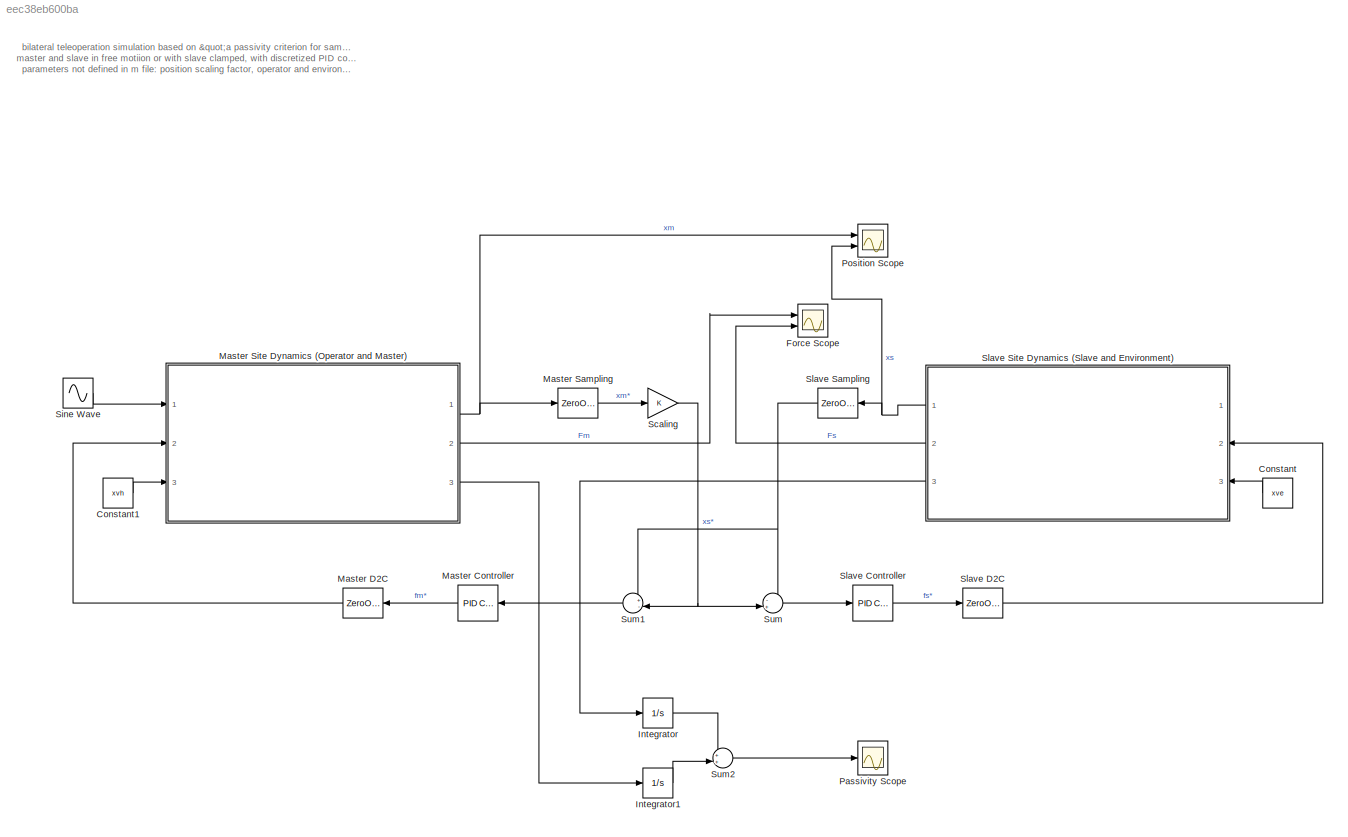
MODEL slx_eec38eb600ba
KIND model
CONFIG AbsTol = auto
CONFIG EnableMultiTasking = off
CONFIG FixedStep = 0.0001
CONFIG MaxStep = auto
CONFIG MinStep = auto
CONFIG RelTol = 1e-3
CONFIG SampleTimeConstraint = Unconstrained
CONFIG Solver = FixedStepAuto
CONFIG SolverName = FixedStepAuto
CONFIG StartTime = 0.0
CONFIG StopTime = 10
BLOCK [Constant] Constant
  Value = xve
BLOCK [Constant] Constant1
  Value = xvh
BLOCK [Scope] Force Scope
  NumInputPorts = 2
  Ports = [2]
  ScopeSpecificationString = Simulink.scopes.TimeScopeBlockCfg('CurrentConfiguration', extmgr.ConfigurationSet(extmgr.Configuration('Core','General UI',true),extmgr.Configuration('Core','Source UI',true),extmgr.Configuration('Sources','WiredSimulink',true,'DataLoggingVariableName','ScopeData1'),extmgr.Configuration('Visuals','Time Domain',true,'SerializedDisplays',{struct('MinYLimReal','-18466.92467','MaxYLimReal','20308.6128...<+1429ch>
BLOCK [Integrator] Integrator
  Ports = [1, 1]
BLOCK [Integrator] Integrator1
  Ports = [1, 1]
BLOCK [Reference] Master Controller  REF=simulink/Continuous/PID Controller
  Ports = [1, 1]
  SourceBlock = simulink/Continuous/PID Controller
  SourceProductBaseCode = SL
  SourceProductName = Simulink
  SourceType = PID 1dof
BLOCK [ZeroOrderHold] Master D2C
  SampleTime = -1
BLOCK [ZeroOrderHold] Master Sampling
  SampleTime = tsamp
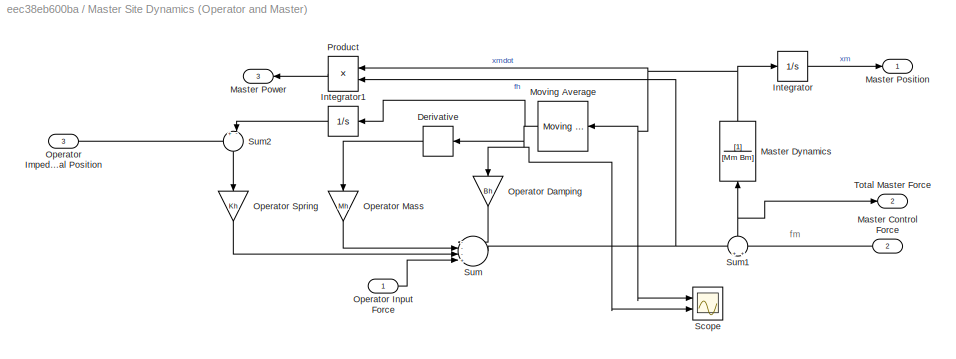
BLOCK [SubSystem] Master Site Dynamics (Operator and Master)
  Ports = [3, 3]
  RequestExecContextInheritance = off
  Variant = off
BLOCK [Derivative] Master Site Dynamics (Operator and Master)/Derivative
BLOCK [Integrator] Master Site Dynamics (Operator and Master)/Integrator
  Ports = [1, 1]
BLOCK [Integrator] Master Site Dynamics (Operator and Master)/Integrator1
  Ports = [1, 1]
BLOCK [Inport] Master Site Dynamics (Operator and Master)/Master Control Force
  IconDisplay = Port number
  Port = 2
BLOCK [TransferFcn] Master Site Dynamics (Operator and Master)/Master Dynamics
  Denominator = [Mm Bm]
BLOCK [Outport] Master Site Dynamics (Operator and Master)/Master Position
  IconDisplay = Port number
BLOCK [Outport] Master Site Dynamics (Operator and Master)/Master Power
  IconDisplay = Port number
  Port = 3
BLOCK [Reference] Master Site Dynamics (Operator and Master)/Moving Average  REF=dspstat3/Moving
Average
  Ports = [1, 1]
  SourceBlock = dspstat3/Moving\nAverage
  SourceProductBaseCode = DS
  SourceProductName = DSP System Toolbox
  SourceType = dsp.MovingAverage
BLOCK [Gain] Master Site Dynamics (Operator and Master)/Operator Damping
  Gain = Bh
  OutDataTypeStr = Inherit: Inherit via internal rule
  ParamDataTypeStr = Inherit: Inherit via internal rule
  SaturateOnIntegerOverflow = off
BLOCK [Inport] Master Site Dynamics (Operator and Master)/Operator Impedance Virtual Position
  IconDisplay = Port number
  Port = 3
BLOCK [Inport] Master Site Dynamics (Operator and Master)/Operator Input Force
  IconDisplay = Port number
BLOCK [Gain] Master Site Dynamics (Operator and Master)/Operator Mass
  Gain = Mh
  OutDataTypeStr = Inherit: Inherit via internal rule
  ParamDataTypeStr = Inherit: Inherit via internal rule
  SaturateOnIntegerOverflow = off
BLOCK [Gain] Master Site Dynamics (Operator and Master)/Operator Spring
  Gain = Kh
  OutDataTypeStr = Inherit: Inherit via internal rule
  ParamDataTypeStr = Inherit: Inherit via internal rule
  SaturateOnIntegerOverflow = off
BLOCK [Product] Master Site Dynamics (Operator and Master)/Product
  InputSameDT = off
  OutDataTypeStr = Inherit: Inherit via internal rule
  Ports = [2, 1]
  RndMeth = Floor
  SaturateOnIntegerOverflow = off
BLOCK [Scope] Master Site Dynamics (Operator and Master)/Scope
  NumInputPorts = 2
  Ports = [2]
  ScopeSpecificationString = Simulink.scopes.TimeScopeBlockCfg('CurrentConfiguration', extmgr.ConfigurationSet(extmgr.Configuration('Core','General UI',true),extmgr.Configuration('Core','Source UI',true),extmgr.Configuration('Sources','WiredSimulink',true,'DataLoggingVariableName','ScopeData1'),extmgr.Configuration('Visuals','Time Domain',true,'SerializedDisplays',{struct('MinYLimReal','-6.77541','MaxYLimReal','6.74983','YLab...<+1414ch>
BLOCK [Sum] Master Site Dynamics (Operator and Master)/Sum
  IconShape = round
  InputSameDT = off
  Inputs = ---+|
  OutDataTypeStr = Inherit: Inherit via internal rule
  Ports = [4, 1]
  SaturateOnIntegerOverflow = off
BLOCK [Sum] Master Site Dynamics (Operator and Master)/Sum1
  IconShape = round
  InputSameDT = off
  Inputs = +|+
  OutDataTypeStr = Inherit: Inherit via internal rule
  Ports = [2, 1]
  SaturateOnIntegerOverflow = off
BLOCK [Sum] Master Site Dynamics (Operator and Master)/Sum2
  IconShape = round
  InputSameDT = off
  Inputs = +-|
  OutDataTypeStr = Inherit: Inherit via internal rule
  Ports = [2, 1]
  SaturateOnIntegerOverflow = off
BLOCK [Outport] Master Site Dynamics (Operator and Master)/Total Master Force
  IconDisplay = Port number
  Port = 2
BLOCK [Scope] Passivity Scope
  NumInputPorts = 1
  Ports = [1]
  ScopeSpecificationString = Simulink.scopes.TimeScopeBlockCfg('CurrentConfiguration', extmgr.ConfigurationSet(extmgr.Configuration('Core','General UI',true),extmgr.Configuration('Core','Source UI',true),extmgr.Configuration('Sources','WiredSimulink',true,'DataLoggingVariableName','ScopeData4'),extmgr.Configuration('Visuals','Time Domain',true,'SerializedDisplays',{struct('MinYLimReal','-2.90635','MaxYLimReal','26.1578','YLab...<+1440ch>
BLOCK [Scope] Position Scope
  NumInputPorts = 2
  Ports = [2]
  ScopeSpecificationString = Simulink.scopes.TimeScopeBlockCfg('CurrentConfiguration', extmgr.ConfigurationSet(extmgr.Configuration('Core','General UI',true),extmgr.Configuration('Core','Source UI',true),extmgr.Configuration('Sources','WiredSimulink',true),extmgr.Configuration('Visuals','Time Domain',true,'SerializedDisplays',{struct('MinYLimReal','-2.74905','MaxYLimReal','11.15166','YLabelReal','','MinYLimMag','0.00000','Max...<+1410ch>
BLOCK [Gain] Scaling
  OutDataTypeStr = Inherit: Inherit via internal rule
  ParamDataTypeStr = Inherit: Inherit via internal rule
  SaturateOnIntegerOverflow = off
BLOCK [Sin] Sine Wave
  Frequency = 10
  Ports = [0, 1]
  SampleTime = 0
BLOCK [Reference] Slave Controller  REF=simulink/Continuous/PID Controller
  Ports = [1, 1]
  SourceBlock = simulink/Continuous/PID Controller
  SourceProductBaseCode = SL
  SourceProductName = Simulink
  SourceType = PID 1dof
BLOCK [ZeroOrderHold] Slave D2C
  SampleTime = -1
BLOCK [ZeroOrderHold] Slave Sampling
  SampleTime = tsamp
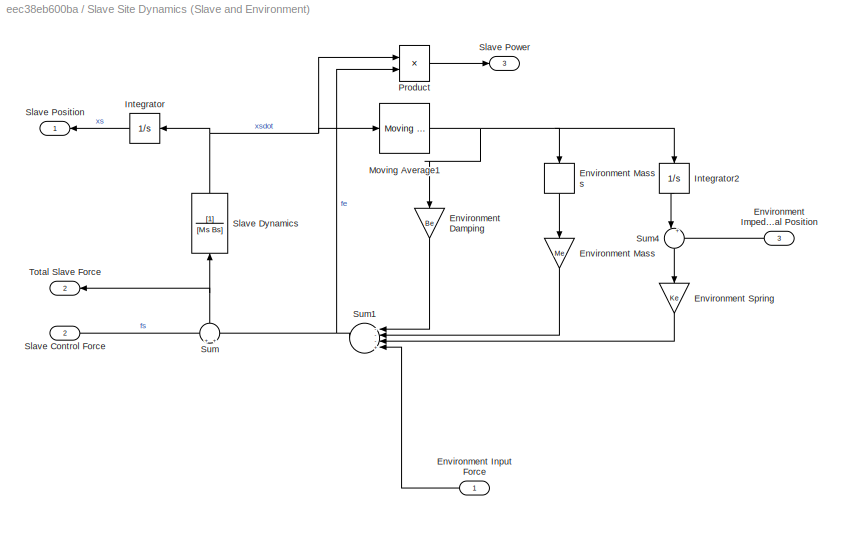
BLOCK [SubSystem] Slave Site Dynamics (Slave and Environment)
  Ports = [3, 3]
  RequestExecContextInheritance = off
  Variant = off
BLOCK [Gain] Slave Site Dynamics (Slave and Environment)/Environment Damping
  Gain = Be
  OutDataTypeStr = Inherit: Inherit via internal rule
  ParamDataTypeStr = Inherit: Inherit via internal rule
  SaturateOnIntegerOverflow = off
BLOCK [Inport] Slave Site Dynamics (Slave and Environment)/Environment Impedance Virtual Position
  IconDisplay = Port number
  Port = 3
BLOCK [Inport] Slave Site Dynamics (Slave and Environment)/Environment Input Force
  IconDisplay = Port number
BLOCK [Gain] Slave Site Dynamics (Slave and Environment)/Environment Mass
  Gain = Me
  OutDataTypeStr = Inherit: Inherit via internal rule
  ParamDataTypeStr = Inherit: Inherit via internal rule
  SaturateOnIntegerOverflow = off
BLOCK [Derivative] Slave Site Dynamics (Slave and Environment)/Environment Mass s
BLOCK [Gain] Slave Site Dynamics (Slave and Environment)/Environment Spring
  Gain = Ke
  OutDataTypeStr = Inherit: Inherit via internal rule
  ParamDataTypeStr = Inherit: Inherit via internal rule
  SaturateOnIntegerOverflow = off
BLOCK [Integrator] Slave Site Dynamics (Slave and Environment)/Integrator
  Ports = [1, 1]
BLOCK [Integrator] Slave Site Dynamics (Slave and Environment)/Integrator2
  Ports = [1, 1]
BLOCK [Reference] Slave Site Dynamics (Slave and Environment)/Moving Average1  REF=dspstat3/Moving
Average
  Ports = [1, 1]
  SourceBlock = dspstat3/Moving\nAverage
  SourceProductBaseCode = DS
  SourceProductName = DSP System Toolbox
  SourceType = dsp.MovingAverage
BLOCK [Product] Slave Site Dynamics (Slave and Environment)/Product
  InputSameDT = off
  OutDataTypeStr = Inherit: Inherit via internal rule
  Ports = [2, 1]
  RndMeth = Floor
  SaturateOnIntegerOverflow = off
BLOCK [Inport] Slave Site Dynamics (Slave and Environment)/Slave Control Force
  IconDisplay = Port number
  Port = 2
BLOCK [TransferFcn] Slave Site Dynamics (Slave and Environment)/Slave Dynamics
  Denominator = [Ms Bs]
BLOCK [Outport] Slave Site Dynamics (Slave and Environment)/Slave Position
  IconDisplay = Port number
BLOCK [Outport] Slave Site Dynamics (Slave and Environment)/Slave Power
  IconDisplay = Port number
  Port = 3
BLOCK [Sum] Slave Site Dynamics (Slave and Environment)/Sum
  IconShape = round
  InputSameDT = off
  Inputs = +|+
  OutDataTypeStr = Inherit: Inherit via internal rule
  Ports = [2, 1]
  SaturateOnIntegerOverflow = off
BLOCK [Sum] Slave Site Dynamics (Slave and Environment)/Sum1
  IconShape = round
  InputSameDT = off
  Inputs = ---+|
  OutDataTypeStr = Inherit: Inherit via internal rule
  Ports = [4, 1]
  SaturateOnIntegerOverflow = off
BLOCK [Sum] Slave Site Dynamics (Slave and Environment)/Sum4
  IconShape = round
  InputSameDT = off
  Inputs = |+-
  OutDataTypeStr = Inherit: Inherit via internal rule
  Ports = [2, 1]
  SaturateOnIntegerOverflow = off
BLOCK [Outport] Slave Site Dynamics (Slave and Environment)/Total Slave Force
  IconDisplay = Port number
  Port = 2
BLOCK [Sum] Sum
  IconShape = round
  InputSameDT = off
  Inputs = -+|
  OutDataTypeStr = Inherit: Inherit via internal rule
  Ports = [2, 1]
  SaturateOnIntegerOverflow = off
BLOCK [Sum] Sum1
  IconShape = round
  InputSameDT = off
  Inputs = +-|
  OutDataTypeStr = Inherit: Inherit via internal rule
  Ports = [2, 1]
  SaturateOnIntegerOverflow = off
BLOCK [Sum] Sum2
  IconShape = round
  InputSameDT = off
  OutDataTypeStr = Inherit: Inherit via internal rule
  Ports = [2, 1]
  SaturateOnIntegerOverflow = off
ANNOTATION (root): bilateral teleoperation simulation based on "a passivity criterion for sampled-data bilateral teleoperation systems" by Jazayeri and Tavakoli master and slave in free motiion or with slave clamped, with discretized PID controller models parameters not defined in m file: position scaling factor, operator and environment force inputs
ANNOTATION Master Site Dynamics (Operator and Master): fm
LINE Constant1:1 -> Master Site Dynamics (Operator and Master):3
LINE Constant:1 -> Slave Site Dynamics (Slave and Environment):3
LINE Integrator1:1 -> Sum2:2
LINE Integrator:1 -> Sum2:1
LINE Master Controller:1 -> Master D2C:1
LINE Master D2C:1 -> Master Site Dynamics (Operator and Master):2
LINE Master Sampling:1 -> Scaling:1
LINE Master Site Dynamics (Operator and Master)/Derivative:1 -> Master Site Dynamics (Operator and Master)/Operator Mass:1
LINE Master Site Dynamics (Operator and Master)/Integrator1:1 -> Master Site Dynamics (Operator and Master)/Sum2:2
LINE Master Site Dynamics (Operator and Master)/Integrator:1 -> Master Site Dynamics (Operator and Master)/Master Position:1
LINE Master Site Dynamics (Operator and Master)/Master Control Force:1 -> Master Site Dynamics (Operator and Master)/Sum1:2
NET Master Site Dynamics (Operator and Master)/Master Dynamics:1 -> Master Site Dynamics (Operator and Master)/Integrator:1, Master Site Dynamics (Operator and Master)/Moving Average:1, Master Site Dynamics (Operator and Master)/Product:1, Master Site Dynamics (Operator and Master)/Scope:1
NET Master Site Dynamics (Operator and Master)/Moving Average:1 -> Master Site Dynamics (Operator and Master)/Derivative:1, Master Site Dynamics (Operator and Master)/Integrator1:1, Master Site Dynamics (Operator and Master)/Operator Damping:1, Master Site Dynamics (Operator and Master)/Scope:2
LINE Master Site Dynamics (Operator and Master)/Operator Damping:1 -> Master Site Dynamics (Operator and Master)/Sum:1
LINE Master Site Dynamics (Operator and Master)/Operator Impedance Virtual Position:1 -> Master Site Dynamics (Operator and Master)/Sum2:1
LINE Master Site Dynamics (Operator and Master)/Operator Input Force:1 -> Master Site Dynamics (Operator and Master)/Sum:4
LINE Master Site Dynamics (Operator and Master)/Operator Mass:1 -> Master Site Dynamics (Operator and Master)/Sum:2
LINE Master Site Dynamics (Operator and Master)/Operator Spring:1 -> Master Site Dynamics (Operator and Master)/Sum:3
LINE Master Site Dynamics (Operator and Master)/Product:1 -> Master Site Dynamics (Operator and Master)/Master Power:1
NET Master Site Dynamics (Operator and Master)/Sum1:1 -> Master Site Dynamics (Operator and Master)/Master Dynamics:1, Master Site Dynamics (Operator and Master)/Total Master Force:1
LINE Master Site Dynamics (Operator and Master)/Sum2:1 -> Master Site Dynamics (Operator and Master)/Operator Spring:1
NET Master Site Dynamics (Operator and Master)/Sum:1 -> Master Site Dynamics (Operator and Master)/Product:2, Master Site Dynamics (Operator and Master)/Sum1:1
NET Master Site Dynamics (Operator and Master):1 -> Master Sampling:1, Position Scope:1
LINE Master Site Dynamics (Operator and Master):2 -> Force Scope:1
LINE Master Site Dynamics (Operator and Master):3 -> Integrator1:1
NET Scaling:1 -> Sum1:2, Sum:2
LINE Sine Wave:1 -> Master Site Dynamics (Operator and Master):1
LINE Slave Controller:1 -> Slave D2C:1
LINE Slave D2C:1 -> Slave Site Dynamics (Slave and Environment):2
NET Slave Sampling:1 -> Sum1:1, Sum:1
LINE Slave Site Dynamics (Slave and Environment)/Environment Damping:1 -> Slave Site Dynamics (Slave and Environment)/Sum1:1
LINE Slave Site Dynamics (Slave and Environment)/Environment Impedance Virtual Position:1 -> Slave Site Dynamics (Slave and Environment)/Sum4:2
LINE Slave Site Dynamics (Slave and Environment)/Environment Input Force:1 -> Slave Site Dynamics (Slave and Environment)/Sum1:4
LINE Slave Site Dynamics (Slave and Environment)/Environment Mass s:1 -> Slave Site Dynamics (Slave and Environment)/Environment Mass:1
LINE Slave Site Dynamics (Slave and Environment)/Environment Mass:1 -> Slave Site Dynamics (Slave and Environment)/Sum1:2
LINE Slave Site Dynamics (Slave and Environment)/Environment Spring:1 -> Slave Site Dynamics (Slave and Environment)/Sum1:3
LINE Slave Site Dynamics (Slave and Environment)/Integrator2:1 -> Slave Site Dynamics (Slave and Environment)/Sum4:1
LINE Slave Site Dynamics (Slave and Environment)/Integrator:1 -> Slave Site Dynamics (Slave and Environment)/Slave Position:1
NET Slave Site Dynamics (Slave and Environment)/Moving Average1:1 -> Slave Site Dynamics (Slave and Environment)/Environment Damping:1, Slave Site Dynamics (Slave and Environment)/Environment Mass s:1, Slave Site Dynamics (Slave and Environment)/Integrator2:1
LINE Slave Site Dynamics (Slave and Environment)/Product:1 -> Slave Site Dynamics (Slave and Environment)/Slave Power:1
LINE Slave Site Dynamics (Slave and Environment)/Slave Control Force:1 -> Slave Site Dynamics (Slave and Environment)/Sum:1
NET Slave Site Dynamics (Slave and Environment)/Slave Dynamics:1 -> Slave Site Dynamics (Slave and Environment)/Integrator:1, Slave Site Dynamics (Slave and Environment)/Moving Average1:1, Slave Site Dynamics (Slave and Environment)/Product:1
NET Slave Site Dynamics (Slave and Environment)/Sum1:1 -> Slave Site Dynamics (Slave and Environment)/Product:2, Slave Site Dynamics (Slave and Environment)/Sum:2
LINE Slave Site Dynamics (Slave and Environment)/Sum4:1 -> Slave Site Dynamics (Slave and Environment)/Environment Spring:1
NET Slave Site Dynamics (Slave and Environment)/Sum:1 -> Slave Site Dynamics (Slave and Environment)/Slave Dynamics:1, Slave Site Dynamics (Slave and Environment)/Total Slave Force:1
NET Slave Site Dynamics (Slave and Environment):1 -> Position Scope:2, Slave Sampling:1
LINE Slave Site Dynamics (Slave and Environment):2 -> Force Scope:2
LINE Slave Site Dynamics (Slave and Environment):3 -> Integrator:1
LINE Sum1:1 -> Master Controller:1
LINE Sum2:1 -> Passivity Scope:1
LINE Sum:1 -> Slave Controller:1
note: NET lines group one-source signal fan-out (src -> all destinations, sorted); 1:1 wires keep LINE
